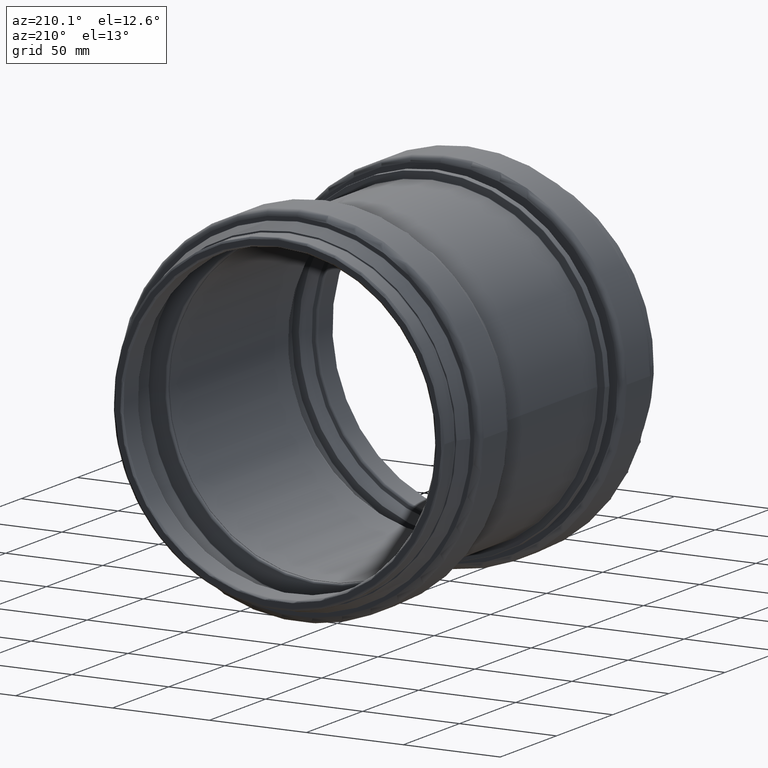
[diagram: clean part render]
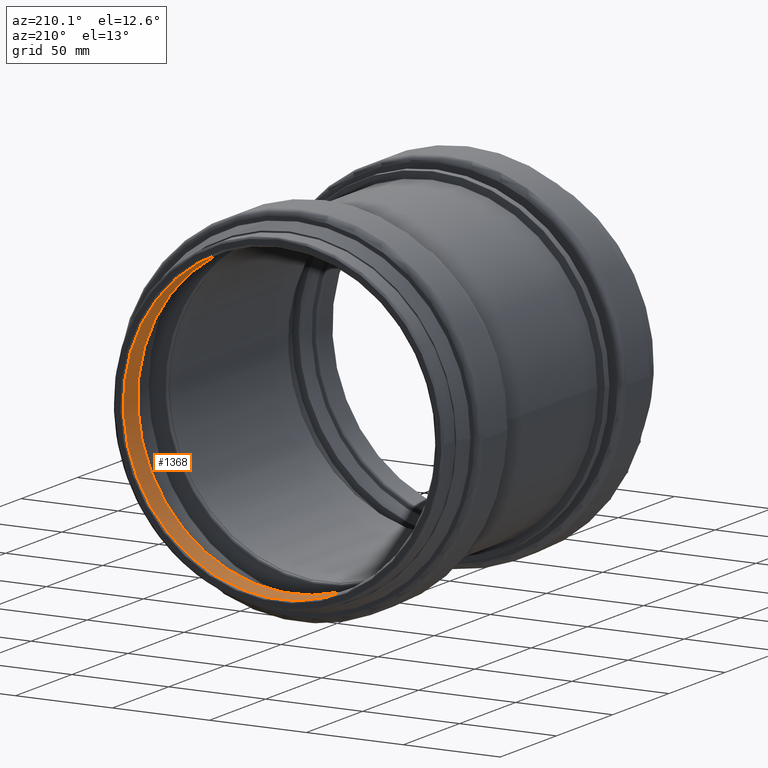
[diagram: same view with one face highlighted and labeled with its STEP entity id]
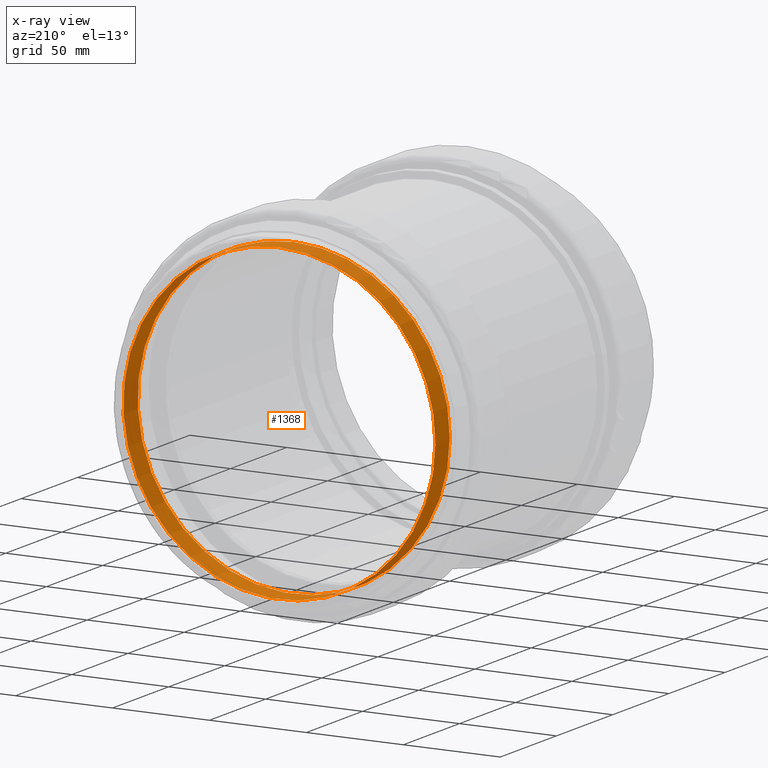
[diagram: x-ray of the same camera — body ghosted, the highlighted face saturated]
A machine part, auxiliary view. The second image highlights one B-rep face of the part: STEP entity #1368.
The next image is the same camera in x-ray: the body ghosted, the highlighted face saturated — about 0% of this face is hidden behind the body in this view.
In plain terms, the highlighted cylindrical surface (bore or boss wall) has radius 80.5 mm, axis along (0, -1, 0).
Its self-contained STEP definition (entity closure, byte-faithful):
#57=LINE('',#2562,#87);
#87=VECTOR('',#2155,80.5);
#103=CYLINDRICAL_SURFACE('',#1635,80.5);
#199=FACE_OUTER_BOUND('',#285,.T.);
#285=EDGE_LOOP('',(#1174,#1175,#1176,#1177,#1178,#1179));
#372=CIRCLE('',#1516,80.5);
#373=CIRCLE('',#1517,80.5);
#451=CIRCLE('',#1632,80.5);
#452=CIRCLE('',#1633,80.5);
#521=VERTEX_POINT('',#2361);
#522=VERTEX_POINT('',#2363);
#584=VERTEX_POINT('',#2556);
#585=VERTEX_POINT('',#2557);
#686=EDGE_CURVE('',#521,#522,#372,.T.);
#687=EDGE_CURVE('',#522,#521,#373,.T.);
#780=EDGE_CURVE('',#584,#585,#451,.T.);
#781=EDGE_CURVE('',#585,#584,#452,.T.);
#783=EDGE_CURVE('',#522,#584,#57,.T.);
#1174=ORIENTED_EDGE('',*,*,#687,.F.);
#1175=ORIENTED_EDGE('',*,*,#783,.T.);
#1176=ORIENTED_EDGE('',*,*,#780,.T.);
#1177=ORIENTED_EDGE('',*,*,#781,.T.);
#1178=ORIENTED_EDGE('',*,*,#783,.F.);
#1179=ORIENTED_EDGE('',*,*,#686,.F.);
#1368=ADVANCED_FACE('',(#199),#103,.F.);
#1516=AXIS2_PLACEMENT_3D('',#2364,#1900,#1901);
#1517=AXIS2_PLACEMENT_3D('',#2365,#1902,#1903);
#1632=AXIS2_PLACEMENT_3D('',#2558,#2147,#2148);
#1633=AXIS2_PLACEMENT_3D('',#2559,#2149,#2150);
#1635=AXIS2_PLACEMENT_3D('',#2561,#2153,#2154);
#1900=DIRECTION('center_axis',(0.,-1.,0.));
#1901=DIRECTION('ref_axis',(1.,0.,0.));
#1902=DIRECTION('center_axis',(0.,-1.,0.));
#1903=DIRECTION('ref_axis',(1.,0.,0.));
#2147=DIRECTION('center_axis',(0.,-1.,0.));
#2148=DIRECTION('ref_axis',(1.,0.,0.));
#2149=DIRECTION('center_axis',(0.,-1.,0.));
#2150=DIRECTION('ref_axis',(1.,0.,0.));
#2153=DIRECTION('center_axis',(0.,-1.,0.));
#2154=DIRECTION('ref_axis',(1.,0.,0.));
#2155=DIRECTION('',(0.,-1.,0.));
#2361=CARTESIAN_POINT('',(4.95427156261608,93.,80.5));
#2363=CARTESIAN_POINT('',(-75.5457284373839,93.,-9.8584067331362E-15));
#2364=CARTESIAN_POINT('Origin',(4.95427156261609,93.,0.));
#2365=CARTESIAN_POINT('Origin',(4.95427156261609,93.,0.));
#2556=CARTESIAN_POINT('',(-75.5457284373839,80.2101043509486,-9.8584067331362E-15));
#2557=CARTESIAN_POINT('',(4.95427156261608,80.2101043509486,80.5));
#2558=CARTESIAN_POINT('Origin',(4.95427156261609,80.2101043509486,0.));
#2559=CARTESIAN_POINT('Origin',(4.95427156261609,80.2101043509486,0.));
#2561=CARTESIAN_POINT('Origin',(4.95427156261609,86.6050521754743,0.));
#2562=CARTESIAN_POINT('',(-75.5457284373839,86.6050521754743,-9.8584067331362E-15));